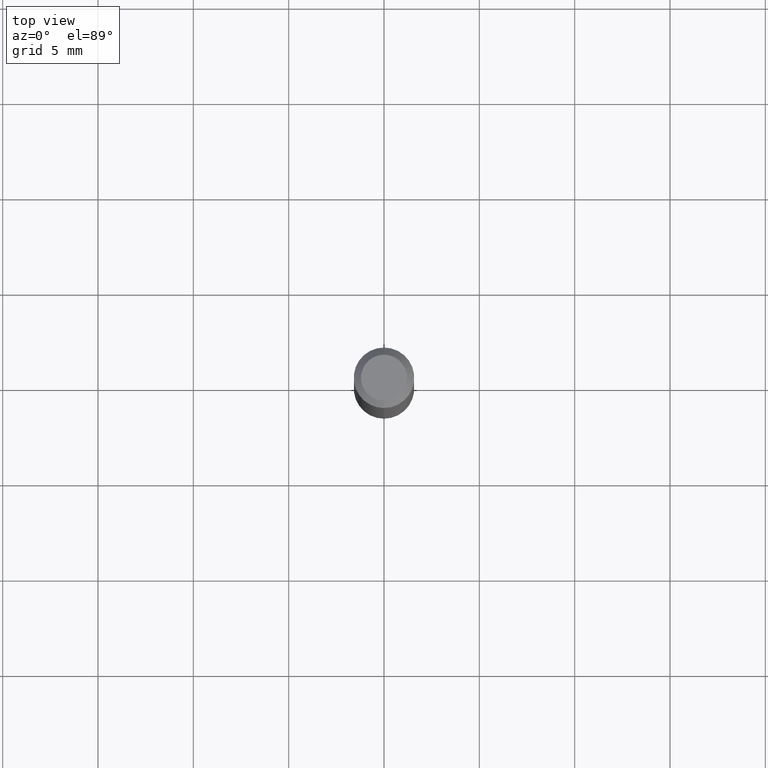
[diagram: clean part render]
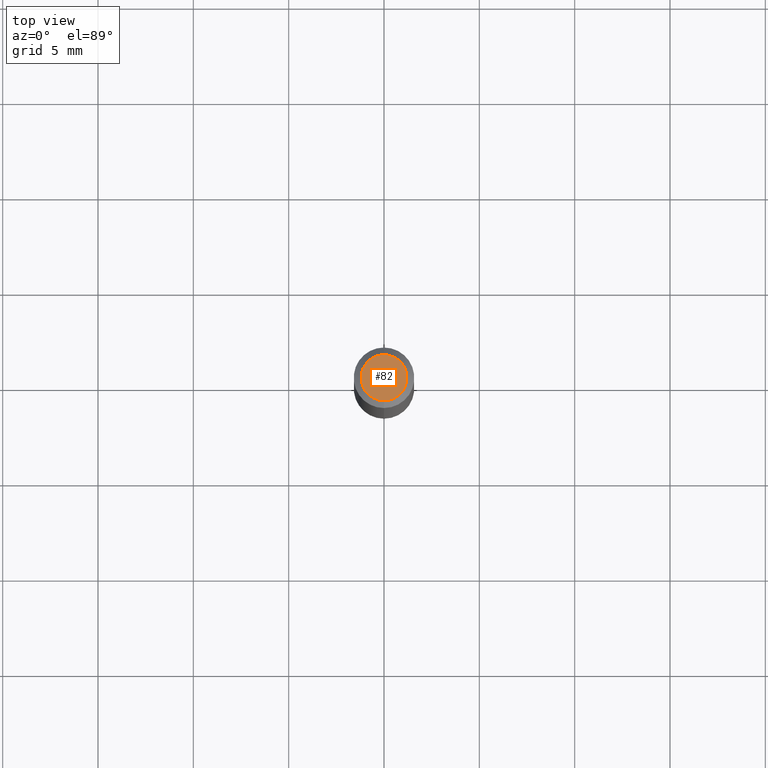
[diagram: same view with one face highlighted and labeled with its STEP entity id]
A machine part, top view. The second image highlights one B-rep face of the part: STEP entity #82.
In plain terms, the highlighted planar face has unit normal (0, -0, -1).
Its self-contained STEP definition (entity closure, byte-faithful):
#7 = CARTESIAN_POINT ( 'NONE',  ( 2.166525261472997960E-46, -3.093258338036396321E-32, -8.859394581085281817E-18 ) ) ;
#29 = CARTESIAN_POINT ( 'NONE',  ( 3.840629472727447874E-16, 0.04749999999999999362, -1.747056831868805136E-16 ) ) ;
#38 = EDGE_LOOP ( 'NONE', ( #98, #182 ) ) ;
#41 = DIRECTION ( 'NONE',  ( 2.445455207626158510E-29, -3.491500812753583566E-15, -1.000000000000000000 ) ) ;
#54 = CIRCLE ( 'NONE', #485, 0.04749999999999999362 ) ;
#55 = DIRECTION ( 'NONE',  ( -6.982962677686266711E-15, -1.000000000000000000, 3.491500812753583960E-15 ) ) ;
#82 = ADVANCED_FACE ( 'NONE', ( #209 ), #120, .F. ) ;
#98 = ORIENTED_EDGE ( 'NONE', *, *, #495, .T. ) ;
#104 = AXIS2_PLACEMENT_3D ( 'NONE', #468, #401, #226 ) ;
#120 = PLANE ( 'NONE',  #306 ) ;
#137 = CIRCLE ( 'NONE', #104, 0.04749999999999999362 ) ;
#142 = VERTEX_POINT ( 'NONE', #29 ) ;
#182 = ORIENTED_EDGE ( 'NONE', *, *, #241, .T. ) ;
#209 = FACE_OUTER_BOUND ( 'NONE', #38, .T. ) ;
#211 = DIRECTION ( 'NONE',  ( 6.982962677686265922E-15, 1.000000000000000000, -3.491500812753583566E-15 ) ) ;
#226 = DIRECTION ( 'NONE',  ( -6.982962677686266711E-15, -1.000000000000000000, 3.491500812753583960E-15 ) ) ;
#241 = EDGE_CURVE ( 'NONE', #414, #142, #137, .T. ) ;
#306 = AXIS2_PLACEMENT_3D ( 'NONE', #364, #41, #211 ) ;
#333 = CARTESIAN_POINT ( 'NONE',  ( -3.773273898774340269E-16, -0.04749999999999999362, 1.569868940247099438E-16 ) ) ;
#364 = CARTESIAN_POINT ( 'NONE',  ( 3.316907271900976096E-16, 0.04749999999999999362, -1.702759858963378650E-16 ) ) ;
#401 = DIRECTION ( 'NONE',  ( -2.445455207626158790E-29, 3.491500812753583960E-15, 1.000000000000000000 ) ) ;
#414 = VERTEX_POINT ( 'NONE', #333 ) ;
#468 = CARTESIAN_POINT ( 'NONE',  ( 2.166525261472997960E-46, -3.093258338036396321E-32, -8.859394581085281817E-18 ) ) ;
#485 = AXIS2_PLACEMENT_3D ( 'NONE', #7, #494, #55 ) ;
#494 = DIRECTION ( 'NONE',  ( -2.445455207626158790E-29, 3.491500812753583960E-15, 1.000000000000000000 ) ) ;
#495 = EDGE_CURVE ( 'NONE', #142, #414, #54, .T. ) ;